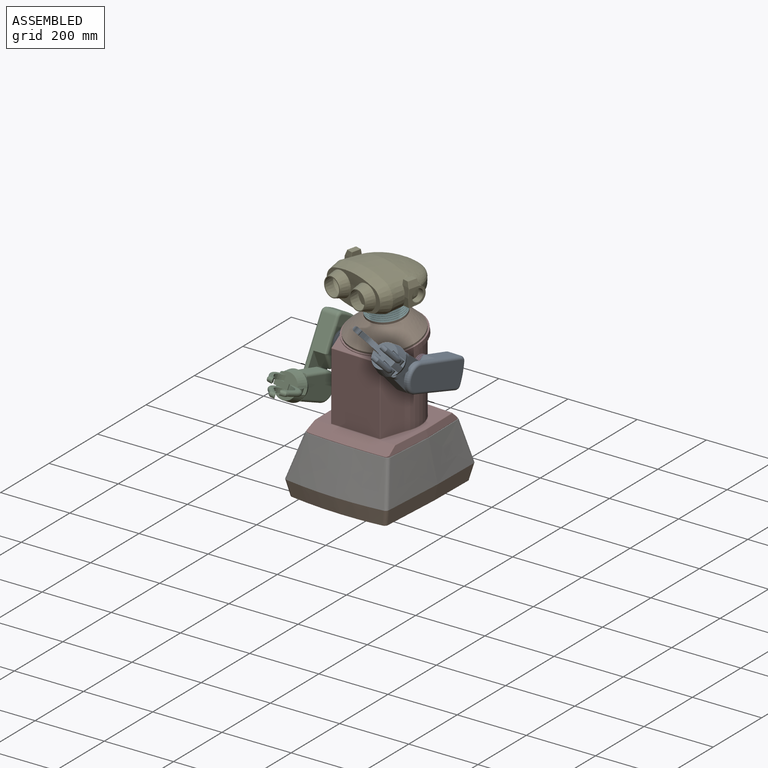
[diagram: assembled view]
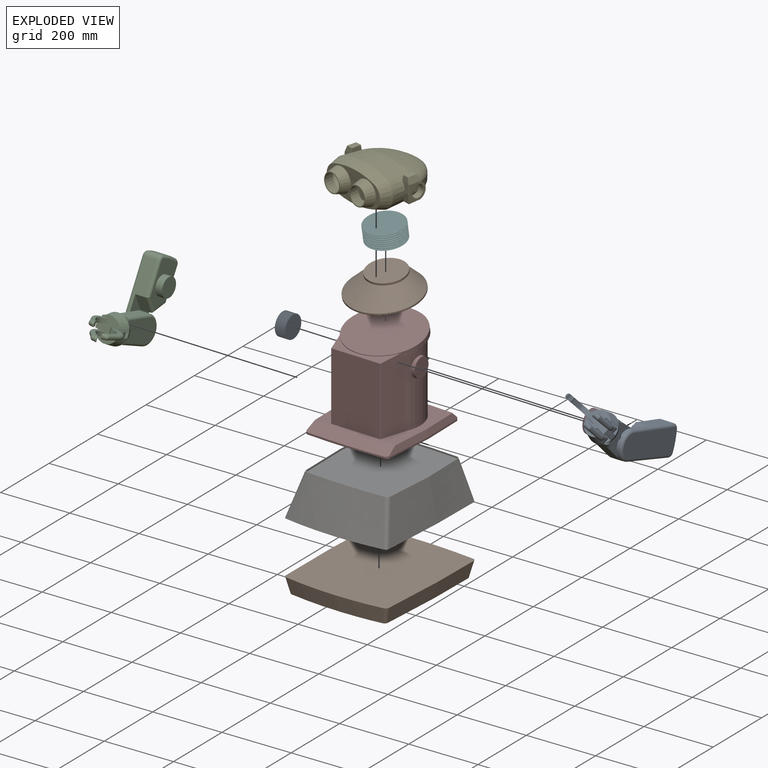
[diagram: exploded view]
GUIDED TOUR — MATED ASSEMBLY WITH SUBASSEMBLIES (Onshape document 103a660172ac3e37fdf2f8b3, AutoMate assembly 103a660172ac3e37fdf2f8b3_768f0f45ffd59bf04294a871_b3bad42c81f9b08c0eccabce_default)

This assembly has 21 component occurrences arranged in 10 top-level units: 7 individual components plus 3 subassemblies (S0, S1, S2). The tour has two levels: first the top level, where each subassembly is treated as one rigid unit; then each subassembly is toured internally in its own section (nesting deeper than one subassembly level is flattened into its subassembly's section).

Components are labeled P0..P20 across the whole record; subassembly units are labeled S0..S2. A mate is a constraint between two units; its type names the relative motion it leaves free:
  FASTENED — locks the two components together rigidly (no relative motion),
  REVOLUTE — leaves rotation about the listed axis free (a hinge).
Axis/direction vectors are unit vectors and 'through' points are millimeter coordinates, both in the assembly's world frame.

TOP-LEVEL MATES (between units; each subassembly's internal mates are listed in its own section)
  1. REVOLUTE "Revolute 1": S0 <-> P13, axis (-0.999, 0.032, 0.000) through (158.72, -116.70, 211.18) mm
  2. FASTENED "Fastened 4": P2 <-> P8, direction (-0.006, -0.174, 0.985) through (48.92, -105.88, 328.69) mm
  3. FASTENED "Fastened 5": P14 <-> S1, direction (-0.999, 0.032, 0.000) through (-81.15, -108.91, 211.18) mm
  4. FASTENED "Fastened 6": P4 <-> S0, direction (0.999, -0.032, 0.000) through (178.71, -117.35, 211.18) mm
  5. FASTENED "Fastened 2": P10 <-> P13, direction (0.000, 0.000, 1.000) through (48.46, -123.05, 29.18) mm
  6. FASTENED "Fastened 3": P13 <-> P2, direction (-0.006, -0.174, 0.985) through (48.73, -111.80, 275.86) mm
  7. REVOLUTE "Revolute 2": P13 <-> S1, axis (-0.999, 0.032, 0.000) through (-61.16, -109.56, 211.18) mm
  8. REVOLUTE "Revolute 3": P8 <-> S2, axis (-0.006, -0.174, 0.985) through (48.68, -113.17, 370.05) mm
  9. FASTENED "Fastened 1": P18 <-> P10, direction (0.000, 0.000, 1.000) through (48.12, -133.45, -80.82) mm

TOP-LEVEL ASSEMBLY ORDER
  1. P13 — the base component [order heuristic]
  2. S1 — core [order heuristic]
  3. S0 — core [order heuristic]
  4. P4 — core [order heuristic]
  5. P14 — core [order heuristic]
  6. P2 [order verified]
  7. P8 [order verified]
  8. S2 [order verified]
  9. P10 [order verified]
  10. P18 [order verified]
Order-tag legend:
  [order verified] — this step's position reverses a verified removal order: the component was checked to insert without passing through the ones already placed.
  [order heuristic] — the first 5 components form the assembly's core: parts whose collision-free extraction could not be verified, listed in mate-graph order.

Of the 21 component occurrences, 8 carry the full construction recipe — the FeatureScript program that regenerates the part's solid from scratch; the rest are supplied as boundary geometry only. Each toured unit is shown spotlighted twice — assembled, then exploded with a leader line back to its socket (green = recipe-attached component, orange = geometry-only, blue = subassembly unit; the rest desaturated gray).
NOTE — document 3 of 3 of this assembly tour. The two overview renders and the header above are repeated from document 1; the component sections below continue where the previous document stopped.
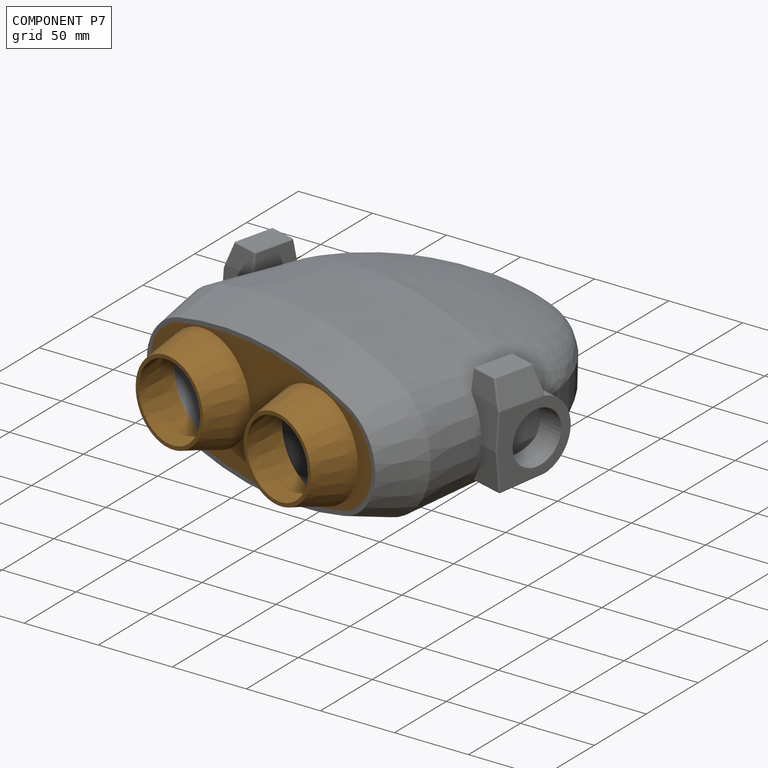
[diagram: component P7 — assembled]
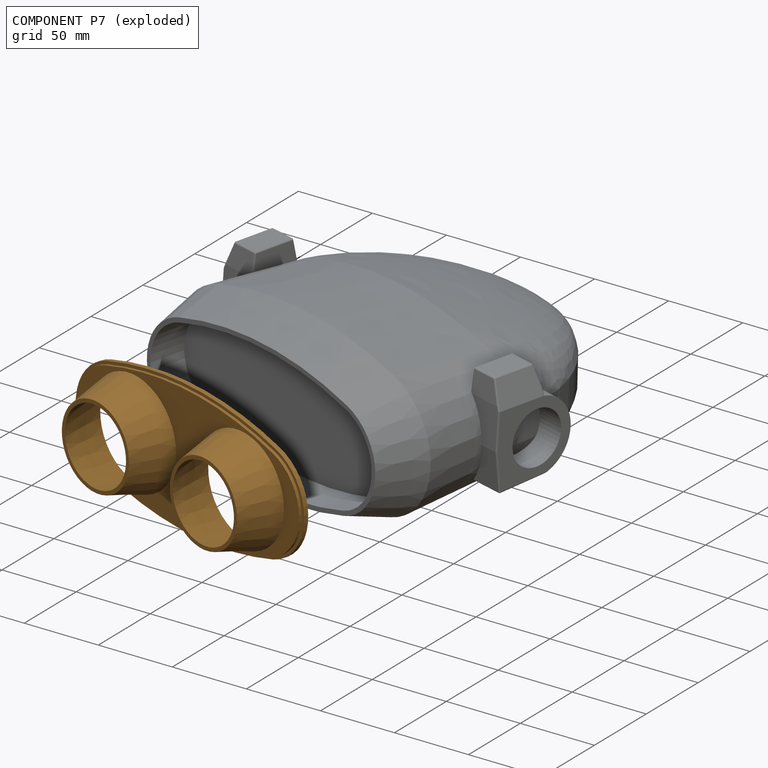
[diagram: component P7 — exploded]
COMPONENT P7 — geometry summary (no construction recipe available for this part):
  bounding box: 190.4 x 90.1 x 33.0 mm
  B-rep topology: 1 solid, 17 faces, 76 edges
  volume: 68541 mm^3 (12% of its bounding box)
  symmetry: 2-fold rotationally symmetric about the z axis; mirror-symmetric across its x mid-plane, y mid-plane
Held by: FASTENED mate "Fastened 1" to P15; FASTENED mate "Fastened 1" to P15.
PROVENANCE & LICENSES
Assembly (occurrences, transforms, mates, per-part STEP geometry): AutoMate dataset, Zenodo record 7776208, CC0.
Construction recipes: CADFS (HuggingFace VladPyatov/CADFS, CC-BY-4.0, layered over the ABC dataset), FeatureScript reconstruction programs keyed by ABC model id.
Join: ABC meta listings map ABC model id -> Onshape documentId; within a shared document, parts are matched by geometric signature (bounding-box dims + volume at 0.1% relative tolerance, exact B-rep face/solid counts).
Verification: 8 of this assembly's 21 components carry a recipe attachment, and every attachment is mesh-verified: the CADFS STEP and the AutoMate member STEP were compared as meshes in their shared local frame (symmetric sampled-point-to-mesh distance); worst across the 8 attachments: below the mesh-comparison resolution (tessellation chordal tolerance ~0.442 mm) on a 294 mm part.
Renders: orthographic iso camera (az 35 / el 25); the floor grid conveys scale (grid pitch printed in each image; no ruler). In the exploded view each component is displaced by its stored offset vector: the offsets alone carry the explosion direction (mate normal/axis signs are not orientation cues and do not encode it), and separation distances are assigned per mate-chain, not proportionally to assembly-order depth.
